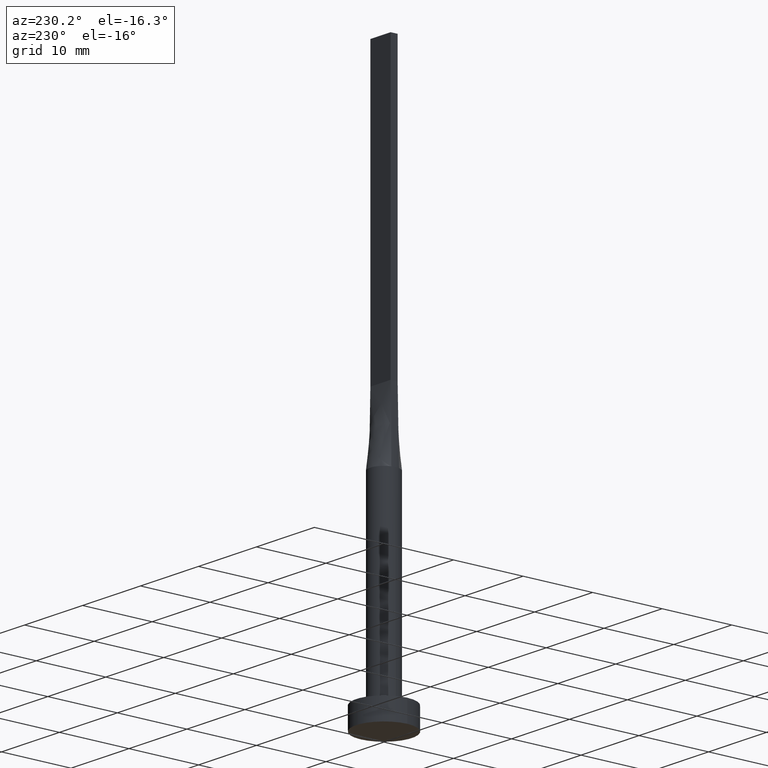
[diagram: clean part render]
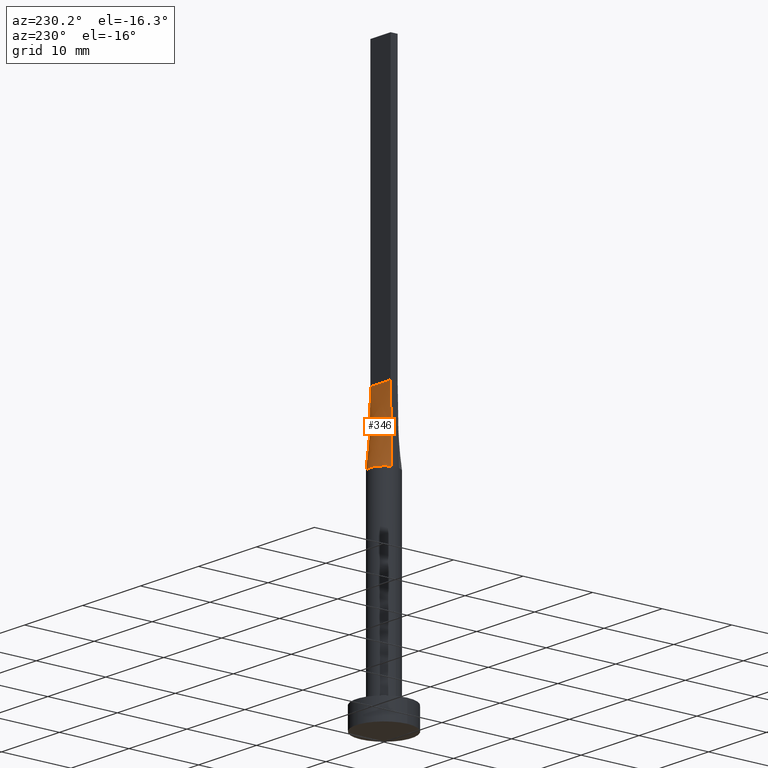
[diagram: same view with one face highlighted and labeled with its STEP entity id]
A machine part, auxiliary view. The second image highlights one B-rep face of the part: STEP entity #346.
In plain terms, the highlighted face is a freeform B-spline surface patch.
Its self-contained STEP definition (entity closure, byte-faithful):
#22 = EDGE_CURVE ( 'NONE', #352, #441, #483, .T. ) ;
#33 = CARTESIAN_POINT ( 'NONE',  ( -1.812374357931688884, 0.8669367617086288780, 30.00000000000001066 ) ) ;
#36 = CARTESIAN_POINT ( 'NONE',  ( 1.923154993136894975, 0.5494733089275741778, 30.00000000000000000 ) ) ;
#47 = CARTESIAN_POINT ( 'NONE',  ( 1.812374357931689328, 0.8669367617086293221, 30.00000000000000355 ) ) ;
#68 = FACE_OUTER_BOUND ( 'NONE', #342, .T. ) ;
#71 = CARTESIAN_POINT ( 'NONE',  ( 0.1458333333333326209, 0.5000000000000002220, 40.00000000000000000 ) ) ;
#75 = CARTESIAN_POINT ( 'NONE',  ( 1.923047895281646325, 0.5494422557947561403, 30.00000000000000000 ) ) ;
#77 = CARTESIAN_POINT ( 'NONE',  ( -1.166666666666666519, 0.5000000000000002220, 39.99999999999999289 ) ) ;
#87 = ORIENTED_EDGE ( 'NONE', *, *, #132, .F. ) ;
#109 = CARTESIAN_POINT ( 'NONE',  ( 1.749999999999998890, 0.5000000000000002220, 40.00000000000000000 ) ) ;
#113 = CARTESIAN_POINT ( 'NONE',  ( 0.5022746254375803909, 1.951069421695587947, 29.99999999999999645 ) ) ;
#115 = CARTESIAN_POINT ( 'NONE',  ( 1.155438169178558461, 1.647245198242353714, 29.99999999999999645 ) ) ;
#116 = CARTESIAN_POINT ( 'NONE',  ( -0.5022746254375797248, 1.951069421695588169, 29.99999999999999645 ) ) ;
#119 = ORIENTED_EDGE ( 'NONE', *, *, #22, .T. ) ;
#125 = CARTESIAN_POINT ( 'NONE',  ( 0.9545234919502409987, 1.774214358793529955, 30.00000000000000355 ) ) ;
#128 = CARTESIAN_POINT ( 'NONE',  ( 0.2514338042514535632, 1.999999999999999556, 30.00000000000000355 ) ) ;
#129 = CARTESIAN_POINT ( 'NONE',  ( -1.923179810488875541, 0.5494804890868837388, 30.00000000000000000 ) ) ;
#130 = DIRECTION ( 'NONE',  ( -1.000000000000000000, -0.000000000000000000, -0.000000000000000000 ) ) ;
#132 = EDGE_CURVE ( 'NONE', #413, #165, #172, .T. ) ;
#133 = CARTESIAN_POINT ( 'NONE',  ( -0.5022746254375797248, 1.951069421695588169, 29.99999999999999645 ) ) ;
#154 = CARTESIAN_POINT ( 'NONE',  ( 1.020833333333332371, 0.5000000000000002220, 39.99999999999999289 ) ) ;
#156 = CARTESIAN_POINT ( 'NONE',  ( -1.486037034853319616, 1.356520562679218056, 30.00000000000000355 ) ) ;
#159 = CARTESIAN_POINT ( 'NONE',  ( -1.155438169178558017, 1.647245198242353936, 30.00000000000000711 ) ) ;
#165 = VERTEX_POINT ( 'NONE', #551 ) ;
#172 = LINE ( 'NONE', #539, #214 ) ;
#180 = CARTESIAN_POINT ( 'NONE',  ( -1.812374357931688884, 0.8669367617086288780, 30.00000000000001066 ) ) ;
#182 = VECTOR ( 'NONE', #365, 1000.000000000000227 ) ;
#200 = CARTESIAN_POINT ( 'NONE',  ( 0.2916666666666658525, 0.5000000000000002220, 39.99999999999999289 ) ) ;
#214 = VECTOR ( 'NONE', #130, 1000.000000000000000 ) ;
#215 = CARTESIAN_POINT ( 'NONE',  ( 0.5022746254375803909, 1.951069421695587947, 29.99999999999999645 ) ) ;
#221 = CARTESIAN_POINT ( 'NONE',  ( -1.155438169178558017, 1.647245198242353936, 30.00000000000000711 ) ) ;
#242 = CARTESIAN_POINT ( 'NONE',  ( -0.2916666666666674623, 0.5000000000000002220, 39.99999999999999289 ) ) ;
#246 = CARTESIAN_POINT ( 'NONE',  ( 1.166666666666665630, 0.5000000000000002220, 39.99999999999999289 ) ) ;
#248 = ORIENTED_EDGE ( 'NONE', *, *, #264, .F. ) ;
#250 = CARTESIAN_POINT ( 'NONE',  ( 0.9545234919502409987, 1.774214358793529955, 30.00000000000000355 ) ) ;
#253 = CARTESIAN_POINT ( 'NONE',  ( -1.923047895281646325, 0.5494422557947555852, 30.00000000000000000 ) ) ;
#255 = VECTOR ( 'NONE', #442, 1000.000000000000227 ) ;
#264 = EDGE_CURVE ( 'NONE', #352, #413, #279, .T. ) ;
#279 = LINE ( 'NONE', #462, #182 ) ;
#291 = CARTESIAN_POINT ( 'NONE',  ( -0.1458333333333340365, 0.5000000000000002220, 39.99999999999999289 ) ) ;
#293 = CARTESIAN_POINT ( 'NONE',  ( -1.458333333333333259, 0.5000000000000002220, 39.99999999999999289 ) ) ;
#295 = LINE ( 'NONE', #308, #255 ) ;
#304 = ORIENTED_EDGE ( 'NONE', *, *, #473, .T. ) ;
#306 = CARTESIAN_POINT ( 'NONE',  ( 1.749999999999999778, 0.5000000000000002220, 40.00000000000000000 ) ) ;
#308 = CARTESIAN_POINT ( 'NONE',  ( -1.836523947640823051, 0.5247211278973779036, 35.00000000000000000 ) ) ;
#311 = CARTESIAN_POINT ( 'NONE',  ( -1.486037034853319616, 1.356520562679218056, 30.00000000000000355 ) ) ;
#314 = CARTESIAN_POINT ( 'NONE',  ( -1.616149014776643966, 1.193458220519943103, 30.00000000000000711 ) ) ;
#332 = CARTESIAN_POINT ( 'NONE',  ( 1.486037034853319616, 1.356520562679217834, 29.99999999999999289 ) ) ;
#334 = CARTESIAN_POINT ( 'NONE',  ( 1.155438169178558461, 1.647245198242353714, 29.99999999999999645 ) ) ;
#337 = CARTESIAN_POINT ( 'NONE',  ( -1.020833333333333481, 0.5000000000000002220, 39.99999999999999289 ) ) ;
#342 = EDGE_LOOP ( 'NONE', ( #119, #304, #87, #248 ) ) ;
#346 = ADVANCED_FACE ( 'NONE', ( #68 ), #399, .T. ) ;
#352 = VERTEX_POINT ( 'NONE', #36 ) ;
#365 = DIRECTION ( 'NONE',  ( -0.01730198768854152372, -0.004943425053869007768, 0.9998380887777591486 ) ) ;
#377 = CARTESIAN_POINT ( 'NONE',  ( 1.616149014776643522, 1.193458220519943103, 30.00000000000000000 ) ) ;
#382 = CARTESIAN_POINT ( 'NONE',  ( -1.879022738048941710, 0.7035303061092221810, 30.00000000000000000 ) ) ;
#399 = B_SPLINE_SURFACE_WITH_KNOTS ( 'NONE', 3, 1, ( 
 ( #75, #109 ),
 ( #474, #421 ),
 ( #573, #568 ),
 ( #377, #246 ),
 ( #332, #154 ),
 ( #334, #472 ),
 ( #250, #516 ),
 ( #113, #200 ),
 ( #570, #71 ),
 ( #431, #291 ),
 ( #116, #242 ),
 ( #508, #423 ),
 ( #159, #520 ),
 ( #156, #337 ),
 ( #479, #77 ),
 ( #33, #293 ),
 ( #382, #482 ),
 ( #253, #434 ) ),
 .UNSPECIFIED., .F., .F., .F.,
 ( 4, 2, 2, 2, 2, 2, 2, 2, 4 ),
 ( 2, 2 ),
 ( 0.000000000000000000, 0.1249999999999999722, 0.2500000000000000000, 0.3750000000000000000, 0.5000000000000001110, 0.6250000000000001110, 0.7500000000000000000, 0.8750000000000000000, 1.000000000000000000 ),
 ( 0.000000000000000000, 1.000000000000000000 ),
 .UNSPECIFIED. ) ;
#413 = VERTEX_POINT ( 'NONE', #306 ) ;
#421 = CARTESIAN_POINT ( 'NONE',  ( 1.604166666666665630, 0.5000000000000002220, 39.99999999999999289 ) ) ;
#423 = CARTESIAN_POINT ( 'NONE',  ( -0.5833333333333339255, 0.5000000000000002220, 39.99999999999999289 ) ) ;
#431 = CARTESIAN_POINT ( 'NONE',  ( -0.2514338042514528415, 1.999999999999999556, 30.00000000000001066 ) ) ;
#434 = CARTESIAN_POINT ( 'NONE',  ( -1.749999999999999778, 0.5000000000000002220, 40.00000000000000000 ) ) ;
#441 = VERTEX_POINT ( 'NONE', #129 ) ;
#442 = DIRECTION ( 'NONE',  ( 0.01730198768854152372, -0.004943425053868931440, 0.9998380887777591486 ) ) ;
#447 = CARTESIAN_POINT ( 'NONE',  ( 1.879022738048942154, 0.7035303061092218480, 30.00000000000000355 ) ) ;
#453 = CARTESIAN_POINT ( 'NONE',  ( -0.9545234919502401105, 1.774214358793530177, 30.00000000000000355 ) ) ;
#462 = CARTESIAN_POINT ( 'NONE',  ( 1.836523947640823051, 0.5247211278973783477, 35.00000000000000000 ) ) ;
#472 = CARTESIAN_POINT ( 'NONE',  ( 0.7291666666666657415, 0.5000000000000002220, 39.99999999999999289 ) ) ;
#473 = EDGE_CURVE ( 'NONE', #441, #165, #295, .T. ) ;
#474 = CARTESIAN_POINT ( 'NONE',  ( 1.879022738048942154, 0.7035303061092218480, 30.00000000000000355 ) ) ;
#479 = CARTESIAN_POINT ( 'NONE',  ( -1.616149014776643966, 1.193458220519943103, 30.00000000000000711 ) ) ;
#482 = CARTESIAN_POINT ( 'NONE',  ( -1.604166666666666519, 0.5000000000000002220, 39.99999999999999289 ) ) ;
#483 = B_SPLINE_CURVE_WITH_KNOTS ( 'NONE', 3,
 ( #578, #447, #47, #528, #532, #115, #125, #215, #128, #495, #133, #453, #221, #311, #314, #180, #500, #544 ),
 .UNSPECIFIED., .F., .F.,
 ( 4, 2, 2, 2, 2, 2, 2, 2, 4 ),
 ( 0.000000000000000000, 0.1249999999999999722, 0.2500000000000000000, 0.3750000000000000000, 0.5000000000000001110, 0.6250000000000001110, 0.7500000000000000000, 0.8750000000000000000, 1.000000000000000000 ),
 .UNSPECIFIED. ) ;
#495 = CARTESIAN_POINT ( 'NONE',  ( -0.2514338042514528415, 1.999999999999999556, 30.00000000000001066 ) ) ;
#500 = CARTESIAN_POINT ( 'NONE',  ( -1.879022738048941710, 0.7035303061092221810, 30.00000000000000000 ) ) ;
#508 = CARTESIAN_POINT ( 'NONE',  ( -0.9545234919502401105, 1.774214358793530177, 30.00000000000000355 ) ) ;
#516 = CARTESIAN_POINT ( 'NONE',  ( 0.5833333333333323711, 0.5000000000000002220, 39.99999999999999289 ) ) ;
#520 = CARTESIAN_POINT ( 'NONE',  ( -0.7291666666666671848, 0.5000000000000002220, 39.99999999999999289 ) ) ;
#528 = CARTESIAN_POINT ( 'NONE',  ( 1.616149014776643522, 1.193458220519943103, 30.00000000000000000 ) ) ;
#532 = CARTESIAN_POINT ( 'NONE',  ( 1.486037034853319616, 1.356520562679217834, 29.99999999999999289 ) ) ;
#539 = CARTESIAN_POINT ( 'NONE',  ( -1.749999999999999778, 0.5000000000000002220, 40.00000000000000000 ) ) ;
#544 = CARTESIAN_POINT ( 'NONE',  ( -1.923179810488875541, 0.5494804890868837388, 30.00000000000000000 ) ) ;
#551 = CARTESIAN_POINT ( 'NONE',  ( -1.749999999999999778, 0.5000000000000002220, 40.00000000000000000 ) ) ;
#568 = CARTESIAN_POINT ( 'NONE',  ( 1.458333333333332371, 0.5000000000000002220, 39.99999999999999289 ) ) ;
#570 = CARTESIAN_POINT ( 'NONE',  ( 0.2514338042514535632, 1.999999999999999556, 30.00000000000000355 ) ) ;
#573 = CARTESIAN_POINT ( 'NONE',  ( 1.812374357931689328, 0.8669367617086293221, 30.00000000000000355 ) ) ;
#578 = CARTESIAN_POINT ( 'NONE',  ( 1.923154993136894975, 0.5494733089275741778, 30.00000000000000000 ) ) ;